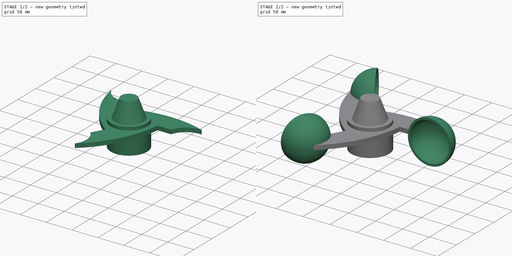
[diagram: build sequence overview — one tinted view per stage of 2, left to right]
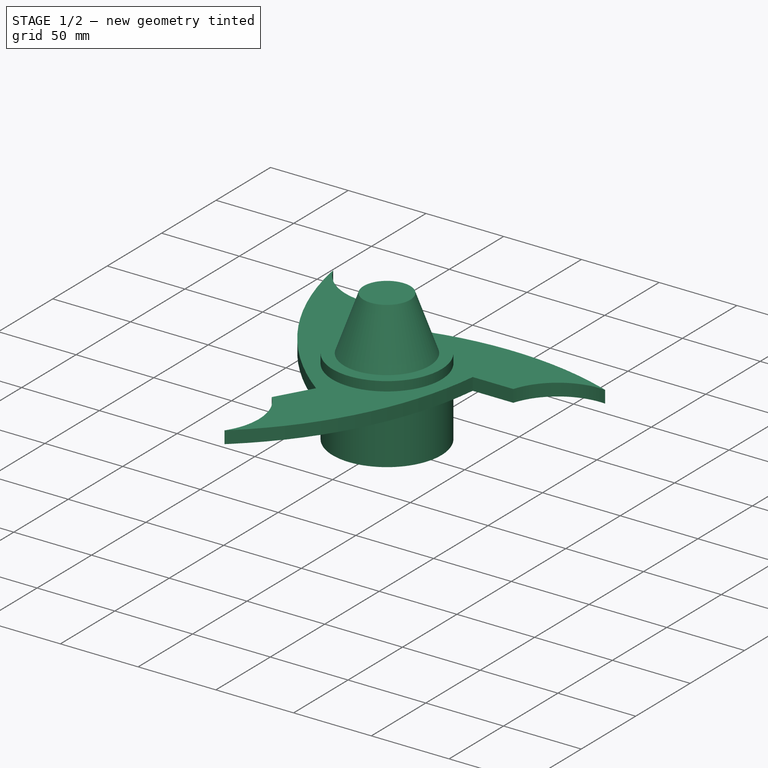
[diagram: stage 1 of 2 — iso view after this stage's code; geometry added in this stage tinted green]
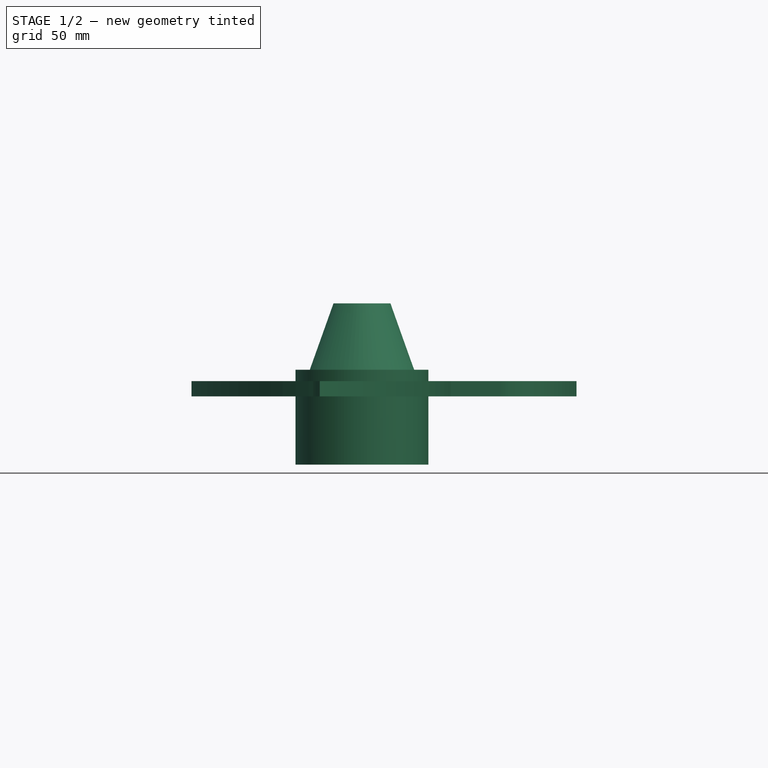
[diagram: stage 1 of 2 — front view after this stage's code; geometry added in this stage tinted green]
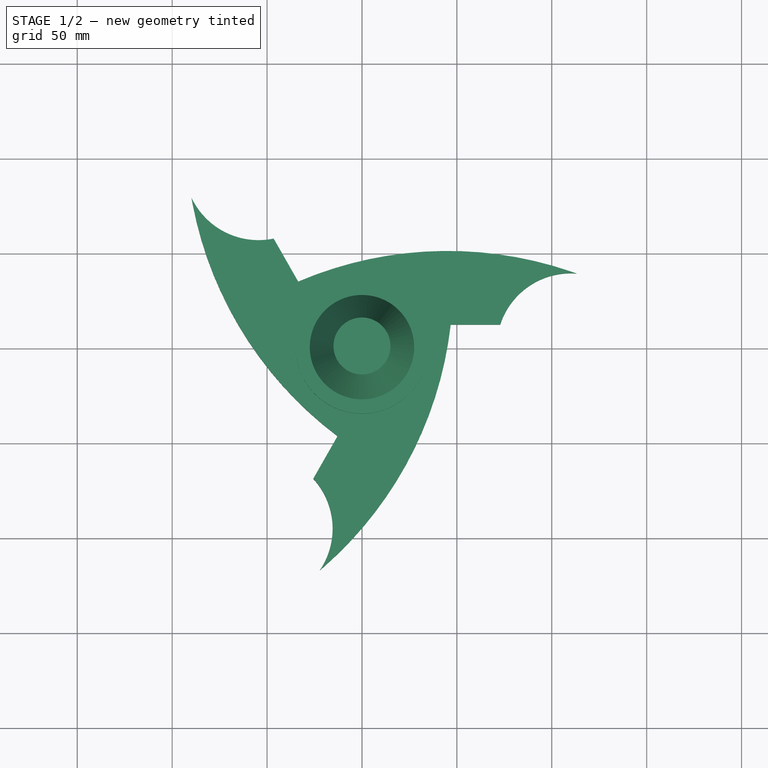
[diagram: stage 1 of 2 — top view after this stage's code; geometry added in this stage tinted green]
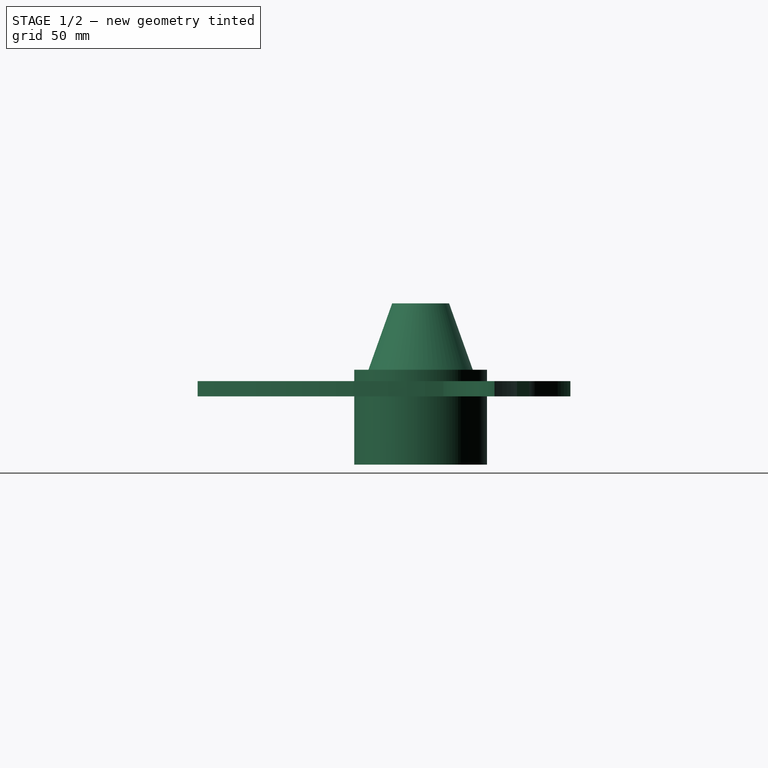
[diagram: stage 1 of 2 — right view after this stage's code; geometry added in this stage tinted green]
FCSTD DOCUMENT  (FreeCAD 1.1R42180 (Git))
Label: 24-WC-37-WHEATHER_STATION_FAN
License: Creative Commons Attribution-NonCommercial-ShareAlike 4.0
LicenseURL: https://creativecommons.org/licenses/by-nc-sa/4.0/
objects: Sketcher::SketchObject×3, PartDesign::Revolution×2, App::Point×1, PartDesign::Pad×1, PartDesign::PolarPattern×1, PartDesign::Body×1, App::TextDocument×1
note: 18 computed .brp shape members not serialized (recipe doc carries the construction recipe); baked Part::Feature solids carry a one-line shape summary decoded from their .brp

FEATURE [App::Point] Origin001  label="Origine"
  Role = Origin
FEATURE [Sketcher::SketchObject] Sketch
  ArcFitTolerance = 1e-06
  AttachmentSupport = -> [Origin]
  ExternalTypes = [0]
  FullyConstrained = true
  MakeInternals = false
  MapMode = 5
  Placement = pos=(0,0,0) rot=(1,0,0;1.5708rad)
  expr: Constraints[24] = 33 / 2
  expr: Constraints[25] = 52 / 2
  expr: Constraints[30] = 55 / 2
  sketch-geometry (11):
    g0: LineSegment StartX=-35 StartY=-40 StartZ=0 EndX=-35 EndY=10 EndZ=0
    g1: LineSegment StartX=-35 StartY=10 StartZ=0 EndX=-27.5 EndY=10 EndZ=0
    g2: LineSegment StartX=-27.5 StartY=10 StartZ=0 EndX=-15 EndY=45 EndZ=0
    g3: LineSegment StartX=-15 StartY=45 StartZ=0 EndX=0 EndY=45 EndZ=0
    g4: LineSegment StartX=0 StartY=45 StartZ=0 EndX=0 EndY=37 EndZ=0
    g5: LineSegment StartX=0 StartY=37 StartZ=0 EndX=-9.36225 EndY=37 EndZ=0
    g6: LineSegment StartX=-9.36225 StartY=37 StartZ=0 EndX=-16.5 EndY=17.0143 EndZ=0
    g7: LineSegment StartX=-16.5 StartY=17.0143 StartZ=0 EndX=-16.5 EndY=-20 EndZ=0
    g8: LineSegment StartX=-16.5 StartY=-20 StartZ=0 EndX=-26 EndY=-20 EndZ=0
    g9: LineSegment StartX=-26 StartY=-20 StartZ=0 EndX=-26 EndY=-40 EndZ=0
    g10: LineSegment StartX=-26 StartY=-40 StartZ=0 EndX=-35 EndY=-40 EndZ=0
  constraints (33):
    c: Vertical(g0)
    c: Coincident(g0,g1)
    c: Horizontal(g1)
    c: Coincident(g1,g2)
    c: Coincident(g2,g3)
    c: PointOnObject(g3,g-2)
    c: Horizontal(g3)
    c: Coincident(g3,g4)
    c: PointOnObject(g4,g-2)
    c: Coincident(g4,g5)
    c: Horizontal(g5)
    c: Coincident(g5,g6)
    c: Coincident(g6,g7)
    c: Vertical(g7)
    c: Coincident(g7,g8)
    c: Horizontal(g8)
    c: Coincident(g8,g9)
    c: Vertical(g9)
    c: Coincident(g9,g10)
    c: Coincident(g10,g0)
    c: Horizontal(g10)
    c: Distance(g4,g4) = 8
    c: Distance(g6,g2) = 8
    c: Parallel(g2,g6)
    c: Distance(g7,g-2) = 16.5
    c: Distance(g9,g-2) = 26
    c: DistanceX(g0,g-1) = 35
    c: Distance(g0,g-1) = 40
    c: DistanceY(g0,g0) = 50
    c: Distance(g9,g9) = 20
    c: Distance(g1,g-2) = 27.5
    c: Distance(g3,g3) = 15
    c: DistanceY(g0,g2) = 85
FEATURE [PartDesign::Revolution] Revolution
  Angle = 360
  Angle2 = 60
  Axis = (0,2e-16,1)
  Base = (0,0,0)
  Profile = -> Sketch
  ReferenceAxis = -> Sketch [V_Axis]
  Refine = true
  Suppressed = false
  Type = 0
FEATURE [Sketcher::SketchObject] Sketch001
  ArcFitTolerance = 1e-06
  AttachmentSupport = -> [Origin]
  ExternalGeometry = -> [Revolution]
  ExternalTypes = [0]
  FullyConstrained = true
  MakeInternals = false
  MapMode = 5
  sketch-geometry (30):
    g0: ArcOfCircle CenterX=-151.962 CenterY=34.7296 CenterZ=0 NormalX=0 NormalY=0 NormalZ=1 AngleXU=0 Radius=200 StartAngle=5.43442 EndAngle=6.16929
    g1: LineSegment StartX=46.7427 StartY=12 StartZ=0 EndX=71.8424 EndY=12 EndZ=0
    g2: GeomPoint X=45 Y=0 Z=0
    g3: Circle [constr] CenterX=0 CenterY=0 CenterZ=0 NormalX=0 NormalY=0 NormalZ=1 AngleXU=0 Radius=110
    g4: LineSegment [constr] StartX=45 StartY=0 StartZ=0 EndX=26.1605 EndY=-106.844 EndZ=0
    g5: ArcOfCircle [constr] CenterX=110 CenterY=0 CenterZ=0 NormalX=0 NormalY=0 NormalZ=1 AngleXU=0 Radius=40 StartAngle=0 EndAngle=3.14159
    g6: ArcOfCircle [constr] CenterX=-54.5208 CenterY=-95.5379 CenterZ=0 NormalX=0 NormalY=0 NormalZ=1 AngleXU=0 Radius=40 StartAngle=4.19381 EndAngle=7.33541
    g7: LineSegment [constr] StartX=-74.3465 StartY=-130.279 StartZ=0 EndX=0 EndY=0 EndZ=0
    g8: LineSegment [constr] StartX=-54.5208 StartY=-95.5379 StartZ=0 EndX=-19.7797 EndY=-115.364 EndZ=0
    g9: ArcOfCircle [constr] CenterX=110 CenterY=0 CenterZ=0 NormalX=0 NormalY=0 NormalZ=1 AngleXU=0 Radius=40 StartAngle=1.5708 EndAngle=2.8369
    g10: ArcOfCircle [constr] CenterX=-54.5208 CenterY=95.5379 CenterZ=0 NormalX=0 NormalY=0 NormalZ=1 AngleXU=0 Radius=40 StartAngle=2.08937 EndAngle=4.92627
    g11: LineSegment [constr] StartX=-74.3465 StartY=130.279 StartZ=0 EndX=0 EndY=0 EndZ=0
    g12: ArcOfCircle CenterX=45.1552 CenterY=-149.196 CenterZ=0 NormalX=0 NormalY=0 NormalZ=1 AngleXU=0 Radius=200 StartAngle=1.24061 EndAngle=1.97548
    g13: ArcOfCircle CenterX=107.2 CenterY=113.167 CenterZ=0 NormalX=0 NormalY=0 NormalZ=1 AngleXU=0 Radius=200 StartAngle=3.32998 EndAngle=4.06841
    g14: LineSegment StartX=-12.8771 StartY=-46.7758 StartZ=0 EndX=-25.1859 EndY=-68.3447 EndZ=0
    g15: LineSegment StartX=-33.59 StartY=34.6495 StartZ=0 EndX=-46.0306 EndY=56.4493 EndZ=0
    g16: ArcOfCircle [constr] CenterX=-54.5208 CenterY=95.5379 CenterZ=0 NormalX=0 NormalY=0 NormalZ=1 AngleXU=0 Radius=40 StartAngle=3.66017 EndAngle=4.92627
    g17: ArcOfCircle [constr] CenterX=-54.5208 CenterY=-95.5379 CenterZ=0 NormalX=0 NormalY=0 NormalZ=1 AngleXU=0 Radius=40 StartAngle=5.76461 EndAngle=7.03071
    g18: LineSegment [constr] StartX=-89.2618 StartY=75.7121 StartZ=0 EndX=-54.5208 EndY=95.5379 EndZ=0
    g19: LineSegment [constr] StartX=-33.59 StartY=34.6495 StartZ=0 EndX=74.4879 EndY=80.9417 EndZ=0
    g20: Circle [constr] CenterX=0 CenterY=0 CenterZ=0 NormalX=0 NormalY=0 NormalZ=1 AngleXU=0 Radius=155.88
    g21: ArcOfCircle CenterX=110 CenterY=0 CenterZ=0 NormalX=0 NormalY=0 NormalZ=1 AngleXU=0 Radius=39.0472 StartAngle=1.49269 EndAngle=2.82922
    g22: LineSegment StartX=72.8424 StartY=12 StartZ=0 EndX=71.8424 EndY=12 EndZ=0
    g23: ArcOfCircle CenterX=45.1552 CenterY=-149.196 CenterZ=0 NormalX=0 NormalY=0 NormalZ=1 AngleXU=0 Radius=200 StartAngle=1.22446 EndAngle=1.24061
    g24: ArcOfCircle CenterX=107.2 CenterY=113.167 CenterZ=0 NormalX=0 NormalY=0 NormalZ=1 AngleXU=0 Radius=200 StartAngle=3.31383 EndAngle=3.32998
    g25: ArcOfCircle CenterX=-54.5208 CenterY=95.5379 CenterZ=0 NormalX=0 NormalY=0 NormalZ=1 AngleXU=0 Radius=39.0472 StartAngle=3.58206 EndAngle=4.91859
    g26: LineSegment StartX=-46.5262 StartY=57.3178 StartZ=0 EndX=-46.0306 EndY=56.4493 EndZ=0
    g27: ArcOfCircle CenterX=-54.5208 CenterY=-95.5379 CenterZ=0 NormalX=0 NormalY=0 NormalZ=1 AngleXU=0 Radius=39.0472 StartAngle=5.02272 EndAngle=7.02303
    g28: LineSegment StartX=-25.6816 StartY=-69.2133 StartZ=0 EndX=-25.1859 EndY=-68.3447 EndZ=0
    g29: ArcOfCircle CenterX=-151.962 CenterY=34.7296 CenterZ=0 NormalX=0 NormalY=0 NormalZ=1 AngleXU=0 Radius=200 StartAngle=5.29096 EndAngle=5.43442
  constraints (90):
    c: Coincident(g1,g0)
    c: Horizontal(g1)
    c: PointOnObject(g2,g0)
    c: PointOnObject(g2,g-1)
    c: DistanceX(g-1,g2) = 45
    c: Coincident(g3,g-1)
    c: Coincident(g4,g2)
    c: PointOnObject(g4,g3)
    c: Tangent(g4,g0)
    c: Angle(g4,g-2) = 0.174533
    c: Radius(g0) = 200
    c: PointOnObject(g5,g3)
    c: PointOnObject(g5,g-1)
    c: PointOnObject(g5,g-1)
    c: Radius(g5) = 40
    c: PointOnObject(g1,g5)
    c: PointOnObject(g5,g-1)
    c: PointOnObject(g6,g3)
    c: Coincident(g7,g6)
    c: Coincident(g7,g3)
    c: PointOnObject(g6,g7)
    c: PointOnObject(g6,g7)
    c: Equal(g6,g5)
    c: PointOnObject(g0,g6)
    c: Coincident(g8,g6)
    c: Coincident(g8,g0)
    c: Tangent(g8,g3)
    c: Distance(g1,g-1) = 12
    c: Diameter(g3) = 220
    c: Coincident(g9,g5)
    c: Coincident(g9,g1)
    c: PointOnObject(g10,g3)
    c: Coincident(g11,g10)
    c: Coincident(g11,g3)
    c: PointOnObject(g10,g11)
    c: Equal(g10,g5)
    c: Vertical(g6,g10)
    c: Equal(g0,g13)
    c: Equal(g13,g12)
    c: Coincident(g14,g13)
    c: PointOnObject(g14,g6)
    c: Coincident(g15,g12)
    c: PointOnObject(g15,g10)
    c: Coincident(g17,g14)
    c: Coincident(g17,g0)
    c: Coincident(g12,g9)
    c: Parallel(g15,g11)
    c: Distance(g15,g11) = 12
    c: Distance(g14,g7) = 12
    c: Coincident(g13,g16)
    c: Coincident(g16,g10)
    c: Coincident(g16,g10)
    c: Parallel(g14,g7)
    c: Vertical(g5,g9)
    c: Coincident(g18,g13)
    c: Coincident(g18,g10)
    c: Perpendicular(g11,g18)
    c: PointOnObject(g19,g3)
    c: Tangent(g19,g12) = 1.5708
    c: Coincident(g20,g3)
    c: PointOnObject(g12,g20)
    c: PointOnObject(g13,g20)
    c: PointOnObject(g0,g20)
    c: Vertical(g17,g6)
    c: Vertical(g10,g15)
    c: Coincident(g21,g5)
    c: Distance(g21,g1) = 1
    c: Coincident(g22,g21)
    c: Coincident(g22,g1)
    c: Horizontal(g22)
    c: PointOnObject(g21,g12)
    c: Coincident(g23,g9)
    c: Coincident(g23,g21)
    c: Equal(g23,g12)
    c: Tangent(g24,g13) = -1.5708
    c: Equal(g24,g13)
    c: Coincident(g25,g10)
    c: Coincident(g25,g24)
    c: Coincident(g26,g25)
    c: Coincident(g26,g15)
    c: Distance(g26,g26) = 1
    c: PointOnObject(g25,g15)
    c: Coincident(g27,g17)
    c: Coincident(g28,g27)
    c: Coincident(g28,g14)
    c: PointOnObject(g27,g14)
    c: Coincident(g29,g27)
    c: Equal(g29,g0)
    c: Tangent(g29,g0) = -1.5708
    c: Distance(g28,g28) = 1
FEATURE [PartDesign::Pad] Pad
  BaseFeature = -> Revolution
  Direction = (0,0,1)
  Length = 8
  Length2 = 10
  Midplane = true
  Profile = -> Sketch001
  ReferenceAxis = -> Sketch001 [N_Axis]
  Refine = true
  Suppressed = false
  Type = 0
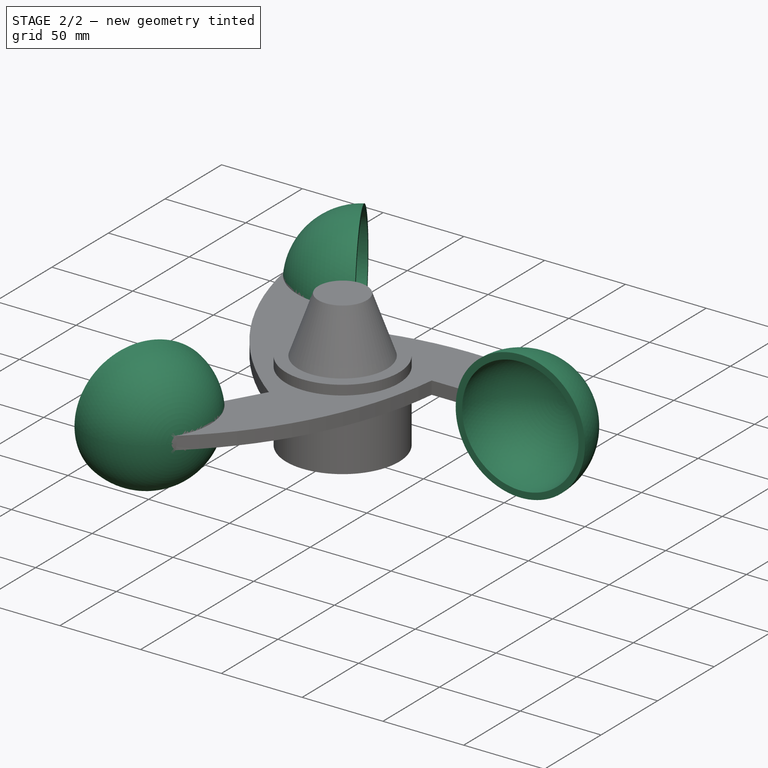
[diagram: stage 2 of 2 — iso view after this stage's code; geometry added in this stage tinted green]
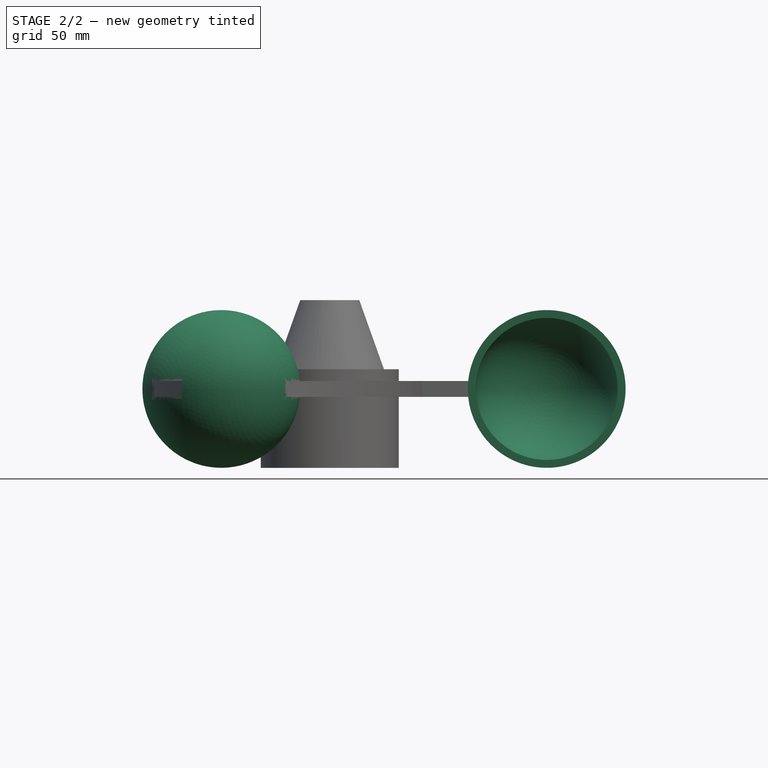
[diagram: stage 2 of 2 — front view after this stage's code; geometry added in this stage tinted green]
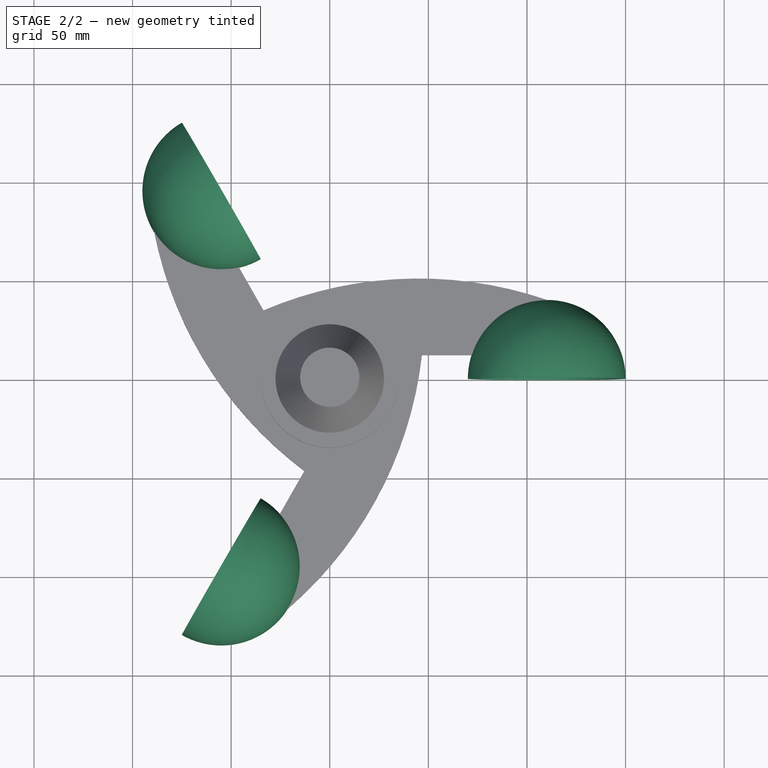
[diagram: stage 2 of 2 — top view after this stage's code; geometry added in this stage tinted green]
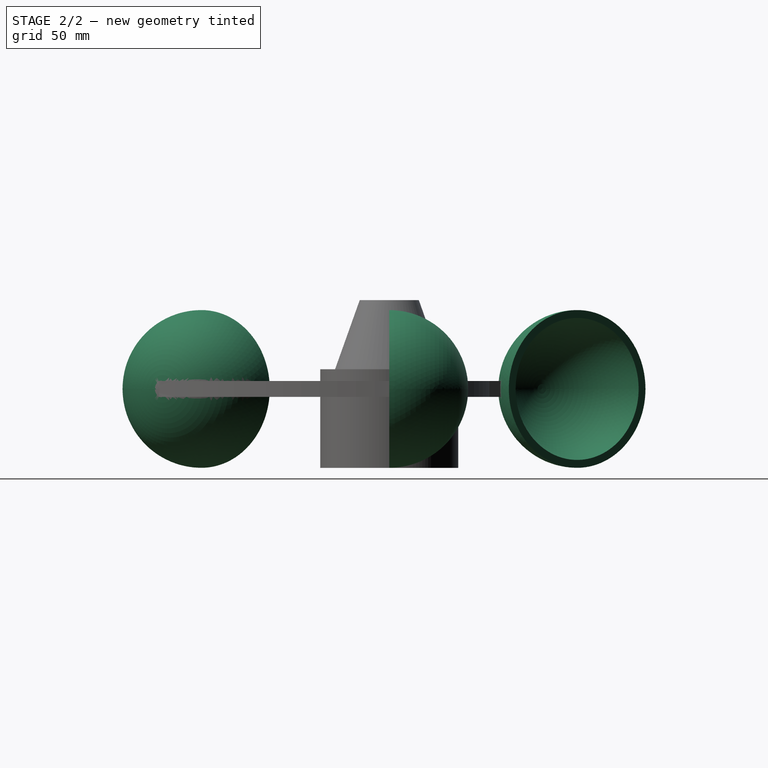
[diagram: stage 2 of 2 — right view after this stage's code; geometry added in this stage tinted green]
FEATURE [Sketcher::SketchObject] Sketch002
  ArcFitTolerance = 1e-06
  AttachmentSupport = -> [Origin]
  ExternalTypes = [0]
  FullyConstrained = true
  MakeInternals = false
  MapMode = 5
  sketch-geometry (4):
    g0: ArcOfCircle CenterX=110 CenterY=0 CenterZ=0 NormalX=0 NormalY=0 NormalZ=1 AngleXU=0 Radius=40 StartAngle=0 EndAngle=1.5708
    g1: ArcOfCircle CenterX=110 CenterY=0 CenterZ=0 NormalX=0 NormalY=0 NormalZ=1 AngleXU=0 Radius=36 StartAngle=0 EndAngle=1.5708
    g2: LineSegment StartX=146 StartY=0 StartZ=0 EndX=150 EndY=0 EndZ=0
    g3: LineSegment StartX=110 StartY=40 StartZ=0 EndX=110 EndY=36 EndZ=0
  constraints (11):
    c: Coincident(g0,g-3)
    c: Coincident(g1,g0)
    c: Coincident(g2,g1)
    c: Coincident(g2,g0)
    c: Horizontal(g2)
    c: Distance(g2,g2) = 4
    c: Coincident(g3,g-3)
    c: Vertical(g3)
    c: Coincident(g3,g1)
    c: Coincident(g0,g3)
    c: PointOnObject(g1,g-1)
FEATURE [PartDesign::Revolution] Revolution001
  Angle = 360
  Angle2 = 60
  Axis = (0,-1,0)
  Base = (110,40,0)
  BaseFeature = -> Pad
  Profile = -> Sketch002
  ReferenceAxis = -> Sketch002 [Edge3]
  Refine = true
  Reversed = true
  Suppressed = false
  Type = 0
FEATURE [PartDesign::PolarPattern] PolarPattern
  Angle = 360
  Axis = -> Sketch002 [N_Axis]
  BaseFeature = -> Revolution001
  Mode = 0
  Occurrences = 3
  Offset = 120
  Originals = -> [Revolution001]
  Refine = true
  Suppressed = false
  TransformMode = 0
FEATURE [PartDesign::Body] Body
  AllowCompound = true
  Group = -> [Sketch,Revolution,Sketch001,Pad,Sketch002,Revolution001,PolarPattern]
  Origin = -> Origin
  Tip = -> PolarPattern
FEATURE [App::TextDocument] Text_document  label="Text document"
  Text = https://www.youtube.com/watch?v=aHyOO4e0J8w\n\nABS, 1020 kg/m3\n\n0,3456 kg, OK!
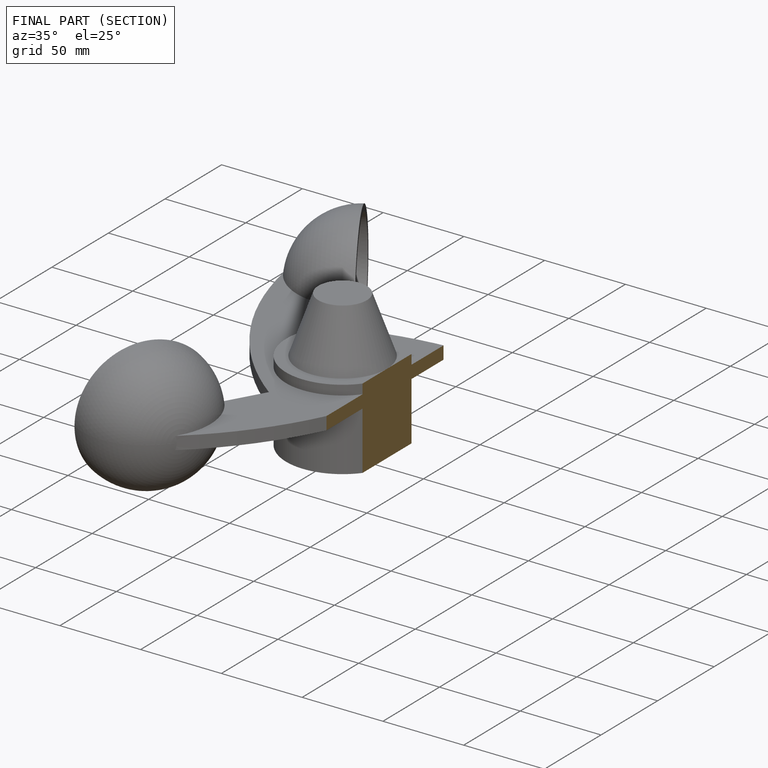
[diagram: finished part — half-section view (interior)]
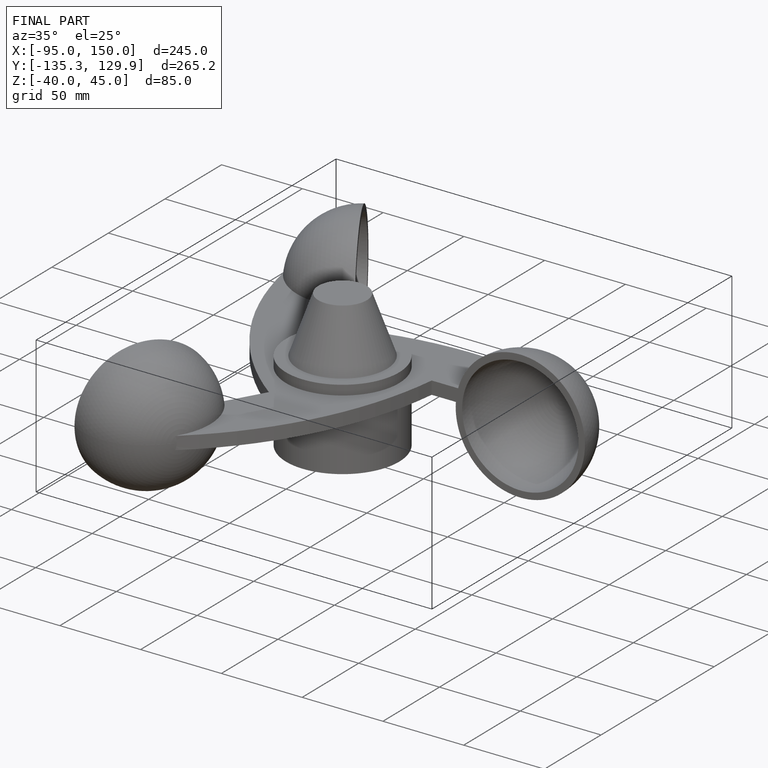
[diagram: finished part — iso view with bounding-box wireframe]
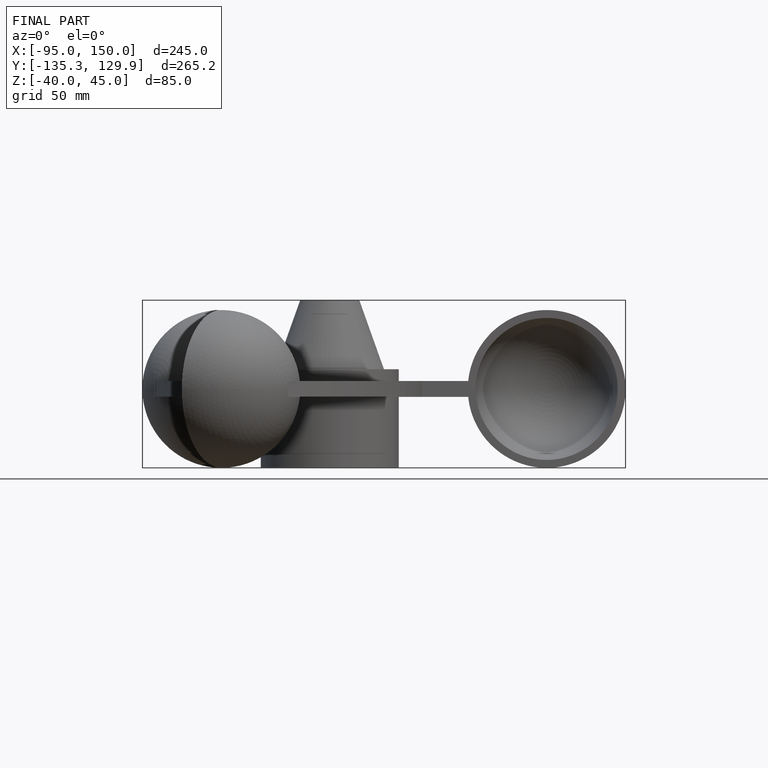
[diagram: finished part — front view with bounding-box wireframe]
